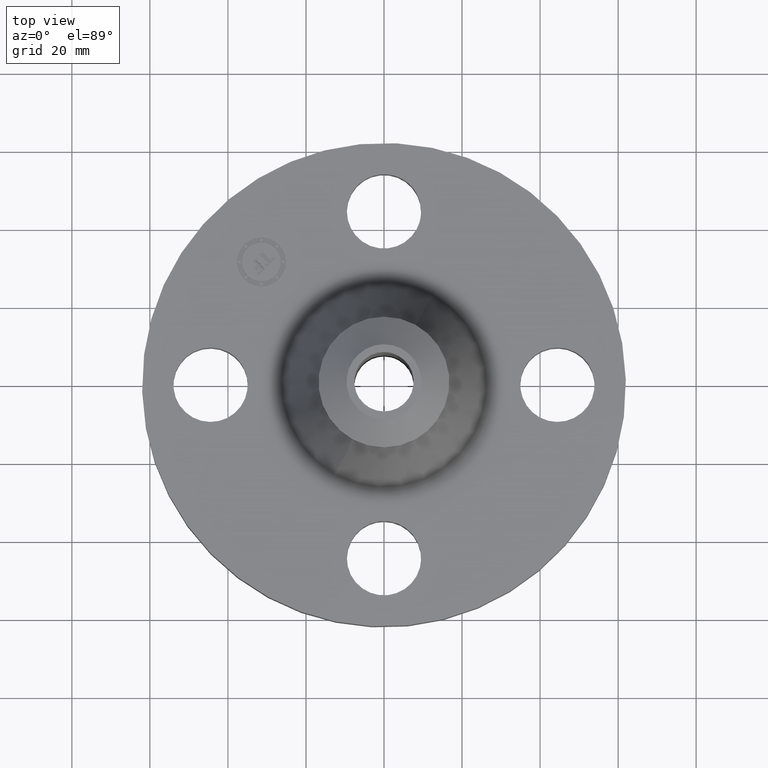
[diagram: clean part render]
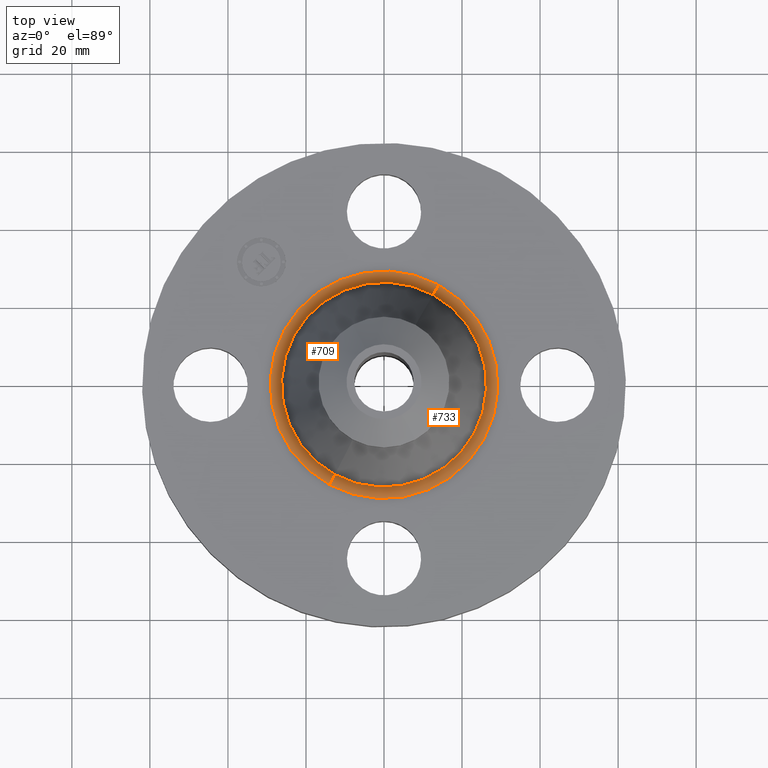
[diagram: same view with one multi-face feature highlighted, each face labeled with its STEP entity id]
A machine part, top view. The highlighted faces form ONE feature: a constant-radius fillet chain: 2 tangent blend faces with common blend radius 3.048 mm. The faces share edges in the B-rep.
Their STEP definitions:
[1] entity #709 (Torus):
#310=AXIS2_PLACEMENT_3D('Circle Axis2P3D',#308,#309,$) ;
#682=AXIS2_PLACEMENT_3D('Torus Axis2P3D',#679,#680,#681) ;
#686=AXIS2_PLACEMENT_3D('Circle Axis2P3D',#684,#685,$) ;
#693=AXIS2_PLACEMENT_3D('Circle Axis2P3D',#691,#692,$) ;
#700=AXIS2_PLACEMENT_3D('Circle Axis2P3D',#698,#699,$) ;
#308=CARTESIAN_POINT('Axis2P3D Location',(3.08530803705E-011,1.35786395251E-012,0.620000000002)) ;
#312=CARTESIAN_POINT('Vertex',(-0.550754553068,-1.00814944707,0.620000000003)) ;
#314=CARTESIAN_POINT('Vertex',(0.55075455307,1.00814944707,0.620000000003)) ;
#679=CARTESIAN_POINT('Axis2P3D Location',(0.,0.,0.740000000003)) ;
#684=CARTESIAN_POINT('Axis2P3D Location',(-0.550754553068,-1.00814944707,0.740000000003)) ;
#688=CARTESIAN_POINT('Vertex',(-0.495740068831,-0.907446109156,0.704896663162)) ;
#691=CARTESIAN_POINT('Axis2P3D Location',(0.,0.,0.704896663162)) ;
#695=CARTESIAN_POINT('Vertex',(0.495740068831,0.907446109156,0.704896663162)) ;
#698=CARTESIAN_POINT('Axis2P3D Location',(0.550754553068,1.00814944707,0.740000000003)) ;
#309=DIRECTION('Axis2P3D Direction',(0.,0.,-0.0393700787402)) ;
#680=DIRECTION('Axis2P3D Direction',(0.,0.,-0.0393700787402)) ;
#681=DIRECTION('Axis2P3D XDirection',(-0.0188750212049,-0.0345504945626,0.)) ;
#685=DIRECTION('Axis2P3D Direction',(0.0345504945626,-0.0188750212049,0.)) ;
#692=DIRECTION('Axis2P3D Direction',(-0.,0.,-0.0393700787402)) ;
#699=DIRECTION('Axis2P3D Direction',(-0.0345504945626,0.0188750212049,0.)) ;
#704=ORIENTED_EDGE('',*,*,#316,.F.) ;
#705=ORIENTED_EDGE('',*,*,#690,.T.) ;
#706=ORIENTED_EDGE('',*,*,#697,.T.) ;
#707=ORIENTED_EDGE('',*,*,#702,.F.) ;
#709=ADVANCED_FACE('PartBody',(#708),#683,.F.) ;
#311=CIRCLE('generated circle',#310,1.14878017277) ;
#687=CIRCLE('generated circle',#686,0.12) ;
#694=CIRCLE('generated circle',#693,1.03402933076) ;
#701=CIRCLE('generated circle',#700,0.12) ;
#683=TOROIDAL_SURFACE('homeo Torus',#682,1.14878017277,0.12) ;
#316=EDGE_CURVE('',#313,#315,#311,.T.) ;
#690=EDGE_CURVE('',#313,#689,#687,.T.) ;
#697=EDGE_CURVE('',#689,#696,#694,.T.) ;
#702=EDGE_CURVE('',#315,#696,#701,.T.) ;
#703=EDGE_LOOP('',(#704,#705,#706,#707)) ;
#708=FACE_OUTER_BOUND('',#703,.T.) ;
#313=VERTEX_POINT('',#312) ;
#315=VERTEX_POINT('',#314) ;
#689=VERTEX_POINT('',#688) ;
#696=VERTEX_POINT('',#695) ;
[2] entity #733 (Torus):
#319=AXIS2_PLACEMENT_3D('Circle Axis2P3D',#317,#318,$) ;
#686=AXIS2_PLACEMENT_3D('Circle Axis2P3D',#684,#685,$) ;
#700=AXIS2_PLACEMENT_3D('Circle Axis2P3D',#698,#699,$) ;
#720=AXIS2_PLACEMENT_3D('Torus Axis2P3D',#717,#718,#719) ;
#724=AXIS2_PLACEMENT_3D('Circle Axis2P3D',#722,#723,$) ;
#312=CARTESIAN_POINT('Vertex',(-0.550754553068,-1.00814944707,0.620000000003)) ;
#314=CARTESIAN_POINT('Vertex',(0.55075455307,1.00814944707,0.620000000003)) ;
#317=CARTESIAN_POINT('Axis2P3D Location',(1.39870617276E-016,1.82133922992E-011,0.620000000002)) ;
#684=CARTESIAN_POINT('Axis2P3D Location',(-0.550754553068,-1.00814944707,0.740000000003)) ;
#688=CARTESIAN_POINT('Vertex',(-0.495740068831,-0.907446109156,0.704896663162)) ;
#695=CARTESIAN_POINT('Vertex',(0.495740068831,0.907446109156,0.704896663162)) ;
#698=CARTESIAN_POINT('Axis2P3D Location',(0.550754553068,1.00814944707,0.740000000003)) ;
#717=CARTESIAN_POINT('Axis2P3D Location',(0.,0.,0.740000000003)) ;
#722=CARTESIAN_POINT('Axis2P3D Location',(0.,0.,0.704896663162)) ;
#318=DIRECTION('Axis2P3D Direction',(0.,0.,-0.0393700787402)) ;
#685=DIRECTION('Axis2P3D Direction',(0.0345504945626,-0.0188750212049,0.)) ;
#699=DIRECTION('Axis2P3D Direction',(-0.0345504945626,0.0188750212049,0.)) ;
#718=DIRECTION('Axis2P3D Direction',(0.,0.,-0.0393700787402)) ;
#719=DIRECTION('Axis2P3D XDirection',(0.0188750212049,0.0345504945626,0.)) ;
#723=DIRECTION('Axis2P3D Direction',(-0.,0.,-0.0393700787402)) ;
#728=ORIENTED_EDGE('',*,*,#321,.F.) ;
#729=ORIENTED_EDGE('',*,*,#702,.T.) ;
#730=ORIENTED_EDGE('',*,*,#726,.T.) ;
#731=ORIENTED_EDGE('',*,*,#690,.F.) ;
#733=ADVANCED_FACE('PartBody',(#732),#721,.F.) ;
#320=CIRCLE('generated circle',#319,1.14878017277) ;
#687=CIRCLE('generated circle',#686,0.12) ;
#701=CIRCLE('generated circle',#700,0.12) ;
#725=CIRCLE('generated circle',#724,1.03402933076) ;
#721=TOROIDAL_SURFACE('homeo Torus',#720,1.14878017277,0.12) ;
#321=EDGE_CURVE('',#315,#313,#320,.T.) ;
#690=EDGE_CURVE('',#313,#689,#687,.T.) ;
#702=EDGE_CURVE('',#315,#696,#701,.T.) ;
#726=EDGE_CURVE('',#696,#689,#725,.T.) ;
#727=EDGE_LOOP('',(#728,#729,#730,#731)) ;
#732=FACE_OUTER_BOUND('',#727,.T.) ;
#313=VERTEX_POINT('',#312) ;
#315=VERTEX_POINT('',#314) ;
#689=VERTEX_POINT('',#688) ;
#696=VERTEX_POINT('',#695) ;